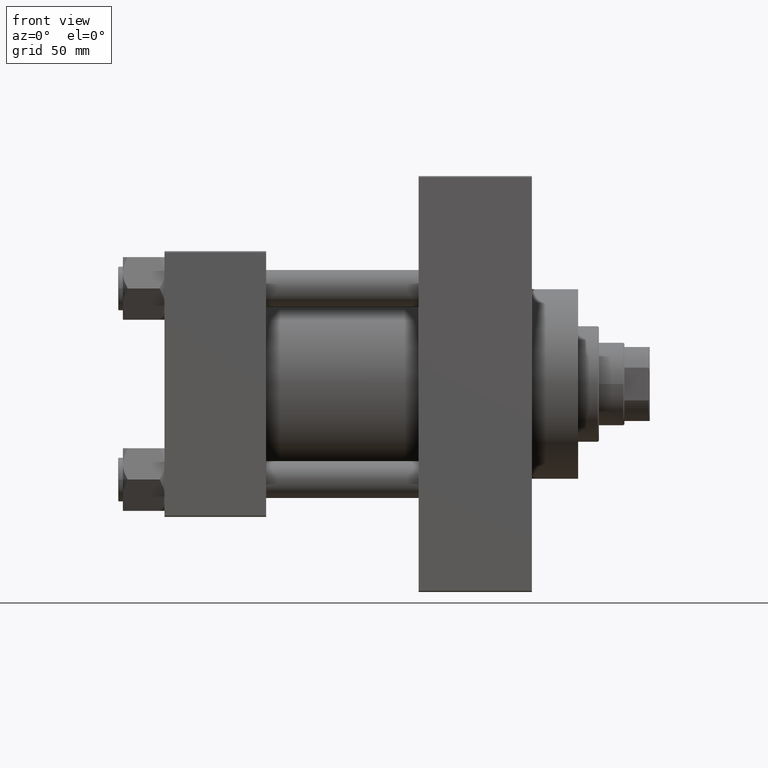
[diagram: clean part render]
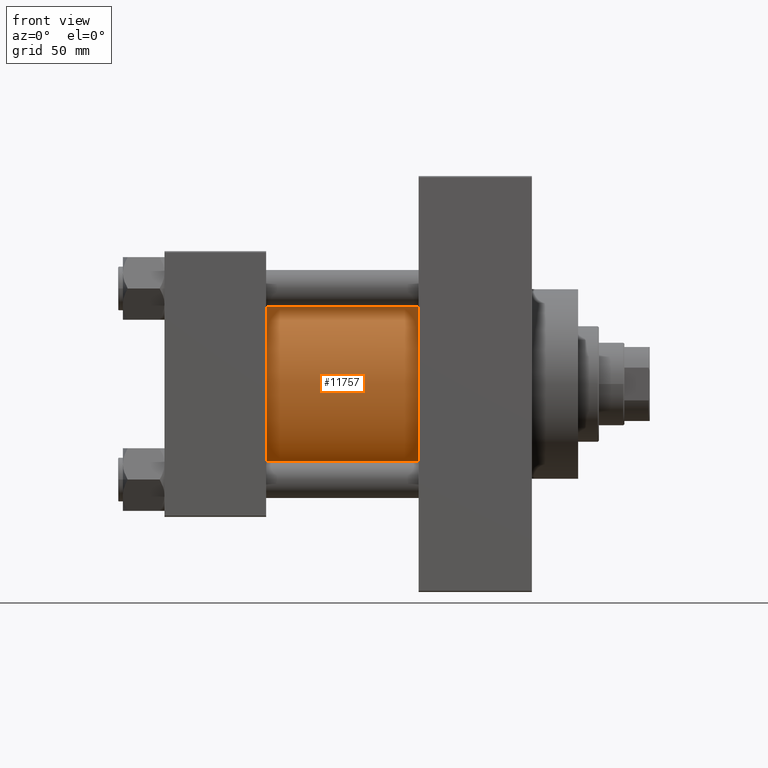
[diagram: same view with one face highlighted and labeled with its STEP entity id]
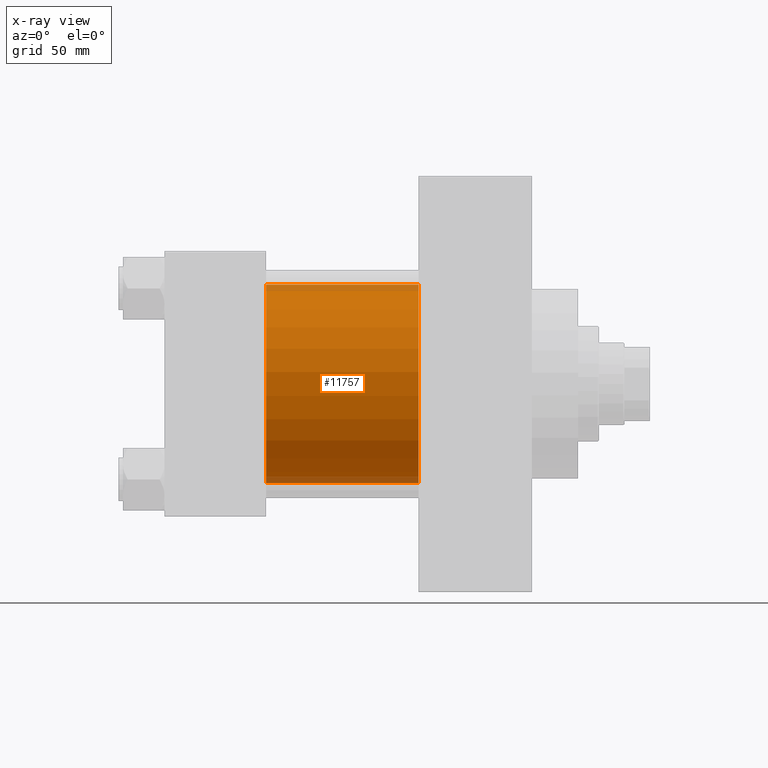
[diagram: x-ray of the same camera — body ghosted, the highlighted face saturated]
A machine part, front view. The second image highlights one B-rep face of the part: STEP entity #11757.
The next image is the same camera in x-ray: the body ghosted, the highlighted face saturated — about 7% of this face is hidden behind the body in this view.
In plain terms, the highlighted cylindrical surface (partial cylindrical patch) has radius 43 mm, axis along (-1, -0, -0).
Its self-contained STEP definition (entity closure, byte-faithful):
#1719 = DIRECTION ( 'NONE',  ( -1.000000000000000000, -0.000000000000000000, -0.000000000000000000 ) ) ;
#3212 = VECTOR ( 'NONE', #46421, 1000.000000000000000 ) ;
#4716 = DIRECTION ( 'NONE',  ( -1.000000000000000000, -0.000000000000000000, -0.000000000000000000 ) ) ;
#4994 = EDGE_CURVE ( 'NONE', #30907, #46809, #42430, .T. ) ;
#10656 = CARTESIAN_POINT ( 'NONE',  ( 110.0000000000000000, 2.663896022368408223E-15, -43.00000000000000000 ) ) ;
#10879 = DIRECTION ( 'NONE',  ( 0.000000000000000000, 0.000000000000000000, -1.000000000000000000 ) ) ;
#11167 = EDGE_CURVE ( 'NONE', #46809, #17671, #48019, .T. ) ;
#11176 = CARTESIAN_POINT ( 'NONE',  ( 44.00000000000000000, -2.602085213965210642E-15, 0.000000000000000000 ) ) ;
#11757 = ADVANCED_FACE ( 'NONE', ( #46486 ), #31745, .T. ) ;
#12020 = ORIENTED_EDGE ( 'NONE', *, *, #23763, .F. ) ;
#15416 = DIRECTION ( 'NONE',  ( 1.000000000000000000, -0.000000000000000000, 0.000000000000000000 ) ) ;
#15897 = CARTESIAN_POINT ( 'NONE',  ( 110.0000000000000000, -2.602085213965210642E-15, 43.00000000000000000 ) ) ;
#17671 = VERTEX_POINT ( 'NONE', #28263 ) ;
#18541 = AXIS2_PLACEMENT_3D ( 'NONE', #39249, #4716, #45994 ) ;
#20232 = CARTESIAN_POINT ( 'NONE',  ( 110.0000000000000000, -2.602085213965210642E-15, 43.00000000000000000 ) ) ;
#21177 = CIRCLE ( 'NONE', #41930, 43.00000000000000000 ) ;
#22286 = EDGE_CURVE ( 'NONE', #30907, #28363, #21177, .T. ) ;
#23763 = EDGE_CURVE ( 'NONE', #28363, #17671, #28959, .T. ) ;
#26348 = EDGE_LOOP ( 'NONE', ( #12020, #27140, #48840, #47933 ) ) ;
#26472 = AXIS2_PLACEMENT_3D ( 'NONE', #11176, #15416, #41957 ) ;
#27140 = ORIENTED_EDGE ( 'NONE', *, *, #22286, .F. ) ;
#27348 = CARTESIAN_POINT ( 'NONE',  ( 44.00000000000000000, -2.602085213965210642E-15, 43.00000000000000000 ) ) ;
#28263 = CARTESIAN_POINT ( 'NONE',  ( 44.00000000000000000, 2.663896022368408223E-15, -43.00000000000000000 ) ) ;
#28363 = VERTEX_POINT ( 'NONE', #10656 ) ;
#28959 = LINE ( 'NONE', #35998, #30831 ) ;
#30831 = VECTOR ( 'NONE', #1719, 1000.000000000000000 ) ;
#30907 = VERTEX_POINT ( 'NONE', #20232 ) ;
#31745 = CYLINDRICAL_SURFACE ( 'NONE', #18541, 43.00000000000000000 ) ;
#35998 = CARTESIAN_POINT ( 'NONE',  ( 110.0000000000000000, 2.663896022368408223E-15, -43.00000000000000000 ) ) ;
#39249 = CARTESIAN_POINT ( 'NONE',  ( 110.0000000000000000, -2.602085213965210642E-15, 0.000000000000000000 ) ) ;
#41930 = AXIS2_PLACEMENT_3D ( 'NONE', #44899, #48892, #10879 ) ;
#41957 = DIRECTION ( 'NONE',  ( 0.000000000000000000, 0.000000000000000000, 1.000000000000000000 ) ) ;
#42430 = LINE ( 'NONE', #15897, #3212 ) ;
#44899 = CARTESIAN_POINT ( 'NONE',  ( 110.0000000000000000, -2.602085213965210642E-15, 0.000000000000000000 ) ) ;
#45994 = DIRECTION ( 'NONE',  ( 0.000000000000000000, 0.000000000000000000, 1.000000000000000000 ) ) ;
#46421 = DIRECTION ( 'NONE',  ( -1.000000000000000000, -0.000000000000000000, -0.000000000000000000 ) ) ;
#46486 = FACE_OUTER_BOUND ( 'NONE', #26348, .T. ) ;
#46809 = VERTEX_POINT ( 'NONE', #27348 ) ;
#47933 = ORIENTED_EDGE ( 'NONE', *, *, #11167, .T. ) ;
#48019 = CIRCLE ( 'NONE', #26472, 43.00000000000000000 ) ;
#48840 = ORIENTED_EDGE ( 'NONE', *, *, #4994, .T. ) ;
#48892 = DIRECTION ( 'NONE',  ( 1.000000000000000000, 0.000000000000000000, 0.000000000000000000 ) ) ;